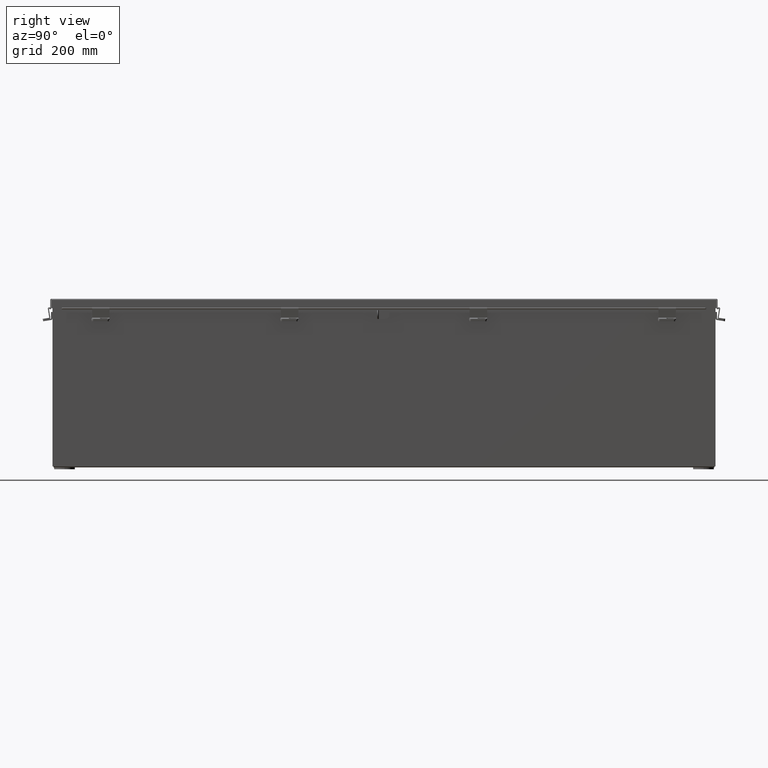
[diagram: clean part render]
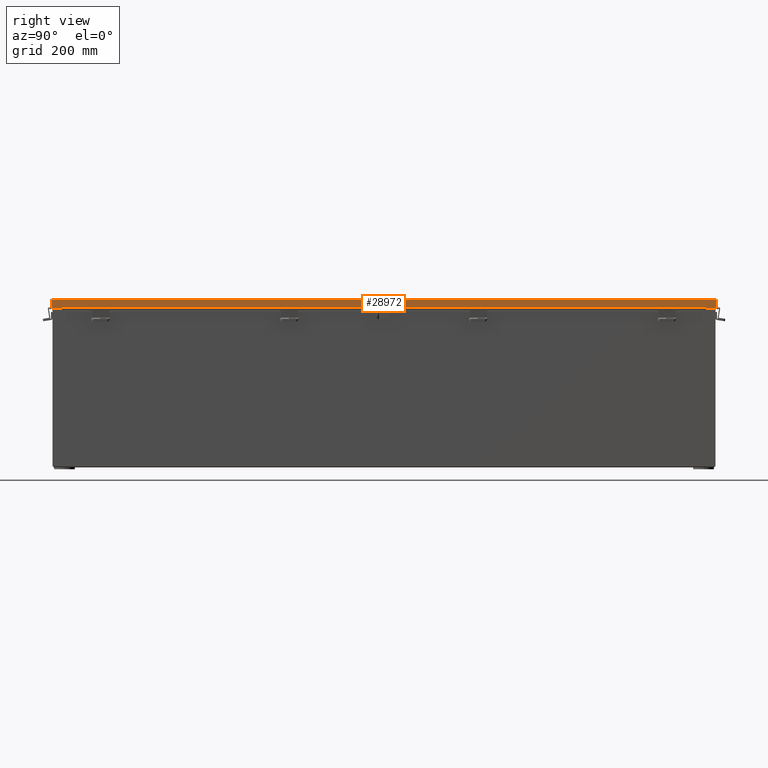
[diagram: same view with one face highlighted and labeled with its STEP entity id]
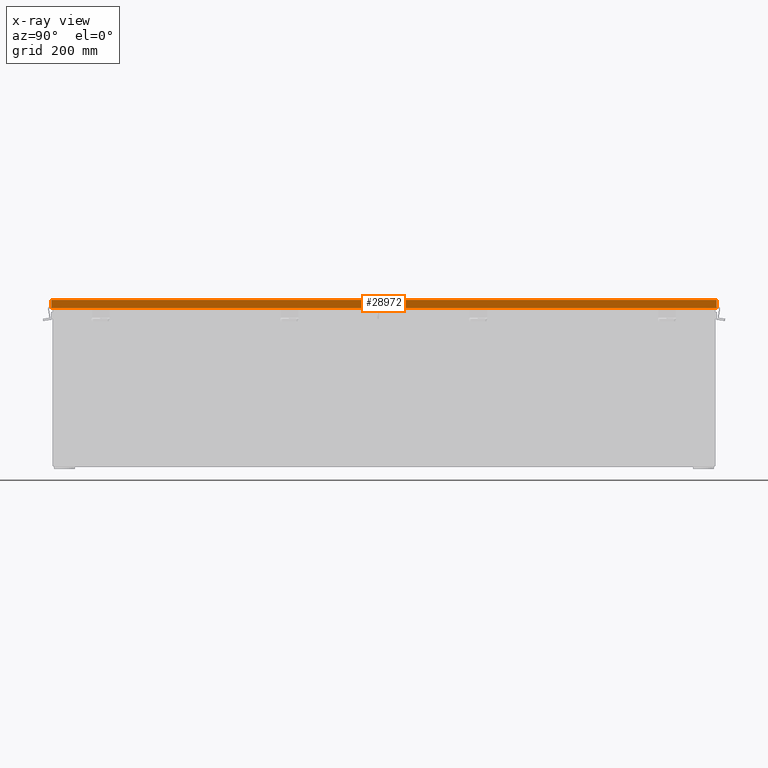
[diagram: x-ray of the same camera — body ghosted, the highlighted face saturated]
A machine part, right view. The second image highlights one B-rep face of the part: STEP entity #28972.
The next image is the same camera in x-ray: the body ghosted, the highlighted face saturated — about 0% of this face is hidden behind the body in this view.
In plain terms, the highlighted planar face has unit normal (-1, 0, -0).
Its self-contained STEP definition (entity closure, byte-faithful):
#137 = DIRECTION ( 'NONE',  ( -3.569293475308526100E-015, -0.0000000000000000000, 1.000000000000000000 ) ) ;
#304 = CARTESIAN_POINT ( 'NONE',  ( -6.156250000000003600, 23.32447893218813600, 0.6122999999999982900 ) ) ;
#1841 = VECTOR ( 'NONE', #33934, 39.37007874015748100 ) ;
#3874 = ORIENTED_EDGE ( 'NONE', *, *, #10258, .T. ) ;
#4325 = LINE ( 'NONE', #29000, #26009 ) ;
#4694 = ORIENTED_EDGE ( 'NONE', *, *, #13292, .F. ) ;
#5308 = VERTEX_POINT ( 'NONE', #20104 ) ;
#6254 = VERTEX_POINT ( 'NONE', #35266 ) ;
#7756 = DIRECTION ( 'NONE',  ( -7.436701470638715300E-033, 1.000000000000000000, 0.0000000000000000000 ) ) ;
#8141 = EDGE_CURVE ( 'NONE', #5308, #18128, #8642, .T. ) ;
#8253 = AXIS2_PLACEMENT_3D ( 'NONE', #13906, #25246, #8330 ) ;
#8330 = DIRECTION ( 'NONE',  ( 3.569293475308526100E-015, 0.0000000000000000000, -1.000000000000000000 ) ) ;
#8642 = LINE ( 'NONE', #304, #22782 ) ;
#8701 = ORIENTED_EDGE ( 'NONE', *, *, #8141, .F. ) ;
#9316 = CARTESIAN_POINT ( 'NONE',  ( -6.156250000000000000, -23.32447893218812900, 0.5967115427318761000 ) ) ;
#9330 = VERTEX_POINT ( 'NONE', #21765 ) ;
#10258 = EDGE_CURVE ( 'NONE', #6254, #29642, #11561, .T. ) ;
#10309 = EDGE_CURVE ( 'NONE', #31867, #29642, #31435, .T. ) ;
#10673 = ORIENTED_EDGE ( 'NONE', *, *, #33525, .F. ) ;
#10710 = VECTOR ( 'NONE', #137, 39.37007874015748100 ) ;
#10855 = CARTESIAN_POINT ( 'NONE',  ( -6.156250000000000000, -23.32447893218812900, 0.5967115427318761000 ) ) ;
#10970 = DIRECTION ( 'NONE',  ( -7.009925220119734100E-014, -4.437342591868191400E-031, 1.000000000000000000 ) ) ;
#11484 = CARTESIAN_POINT ( 'NONE',  ( -6.156249999999998200, 24.15625000000000000, 0.01300000000000010700 ) ) ;
#11561 = LINE ( 'NONE', #21846, #25705 ) ;
#12953 = ORIENTED_EDGE ( 'NONE', *, *, #19665, .T. ) ;
#13292 = EDGE_CURVE ( 'NONE', #18128, #31867, #23551, .T. ) ;
#13506 = LINE ( 'NONE', #33511, #29398 ) ;
#13906 = CARTESIAN_POINT ( 'NONE',  ( -6.156249999999998200, 0.0000000000000000000, -2.185478394931410600E-014 ) ) ;
#14163 = CARTESIAN_POINT ( 'NONE',  ( -6.156250000000000000, 23.32447893218813900, 0.5967115427318761000 ) ) ;
#14207 = VERTEX_POINT ( 'NONE', #29988 ) ;
#14674 = LINE ( 'NONE', #11484, #35462 ) ;
#16351 = VERTEX_POINT ( 'NONE', #23488 ) ;
#18128 = VERTEX_POINT ( 'NONE', #27129 ) ;
#18164 = VECTOR ( 'NONE', #10970, 39.37007874015748100 ) ;
#18210 = LINE ( 'NONE', #19923, #10710 ) ;
#19665 = EDGE_CURVE ( 'NONE', #16351, #6254, #4325, .T. ) ;
#19923 = CARTESIAN_POINT ( 'NONE',  ( -6.156249999999998200, 24.07447893218813600, 0.0000000000000000000 ) ) ;
#20104 = CARTESIAN_POINT ( 'NONE',  ( -6.156250000000000000, 23.32447893218813600, 0.6122999999999982900 ) ) ;
#21702 = FACE_OUTER_BOUND ( 'NONE', #26876, .T. ) ;
#21765 = CARTESIAN_POINT ( 'NONE',  ( -6.156250000000000000, 24.07447893218813600, 0.6123000000000005100 ) ) ;
#21846 = CARTESIAN_POINT ( 'NONE',  ( -6.156250000000000000, 0.0000000000000000000, 0.6123000000000005100 ) ) ;
#22421 = PLANE ( 'NONE',  #8253 ) ;
#22782 = VECTOR ( 'NONE', #34230, 39.37007874015748100 ) ;
#22853 = ORIENTED_EDGE ( 'NONE', *, *, #31555, .T. ) ;
#23488 = CARTESIAN_POINT ( 'NONE',  ( -6.156249999999998200, -24.07447893218813600, 0.01300000000000010700 ) ) ;
#23551 = LINE ( 'NONE', #14163, #1841 ) ;
#24103 = CARTESIAN_POINT ( 'NONE',  ( -6.156250000000000000, -23.32447893218812500, 0.6122999999999982900 ) ) ;
#25246 = DIRECTION ( 'NONE',  ( 1.000000000000000000, -1.191605329739131400E-032, 3.569293475308526100E-015 ) ) ;
#25705 = VECTOR ( 'NONE', #7756, 39.37007874015748100 ) ;
#26009 = VECTOR ( 'NONE', #31853, 39.37007874015748100 ) ;
#26876 = EDGE_LOOP ( 'NONE', ( #8701, #22853, #10673, #36676, #12953, #3874, #29088, #4694 ) ) ;
#27129 = CARTESIAN_POINT ( 'NONE',  ( -6.156250000000000000, 23.32447893218813600, 0.5967115427318761000 ) ) ;
#27932 = DIRECTION ( 'NONE',  ( -7.436701470638715300E-033, 1.000000000000000000, 0.0000000000000000000 ) ) ;
#28972 = ADVANCED_FACE ( 'NONE', ( #21702 ), #22421, .F. ) ;
#29000 = CARTESIAN_POINT ( 'NONE',  ( -6.156249999999998200, -24.07447893218813600, -2.185478394931410600E-014 ) ) ;
#29088 = ORIENTED_EDGE ( 'NONE', *, *, #10309, .F. ) ;
#29398 = VECTOR ( 'NONE', #27932, 39.37007874015748100 ) ;
#29642 = VERTEX_POINT ( 'NONE', #24103 ) ;
#29988 = CARTESIAN_POINT ( 'NONE',  ( -6.156249999999998200, 24.07447893218813600, 0.01300000000000010700 ) ) ;
#31435 = LINE ( 'NONE', #10855, #18164 ) ;
#31555 = EDGE_CURVE ( 'NONE', #5308, #9330, #13506, .T. ) ;
#31853 = DIRECTION ( 'NONE',  ( -3.569293475308526100E-015, 0.0000000000000000000, 1.000000000000000000 ) ) ;
#31867 = VERTEX_POINT ( 'NONE', #9316 ) ;
#33511 = CARTESIAN_POINT ( 'NONE',  ( -6.156250000000000000, 0.0000000000000000000, 0.6123000000000005100 ) ) ;
#33525 = EDGE_CURVE ( 'NONE', #14207, #9330, #18210, .T. ) ;
#33934 = DIRECTION ( 'NONE',  ( 7.436701470638715300E-033, -1.000000000000000000, -0.0000000000000000000 ) ) ;
#34119 = DIRECTION ( 'NONE',  ( -7.436701470638715300E-033, 1.000000000000000000, -0.0000000000000000000 ) ) ;
#34195 = EDGE_CURVE ( 'NONE', #16351, #14207, #14674, .T. ) ;
#34230 = DIRECTION ( 'NONE',  ( 2.102977566036114000E-013, 4.437342591868191400E-031, -1.000000000000000000 ) ) ;
#35266 = CARTESIAN_POINT ( 'NONE',  ( -6.156250000000000000, -24.07447893218813200, 0.6122999999999982900 ) ) ;
#35462 = VECTOR ( 'NONE', #34119, 39.37007874015748100 ) ;
#36676 = ORIENTED_EDGE ( 'NONE', *, *, #34195, .F. ) ;